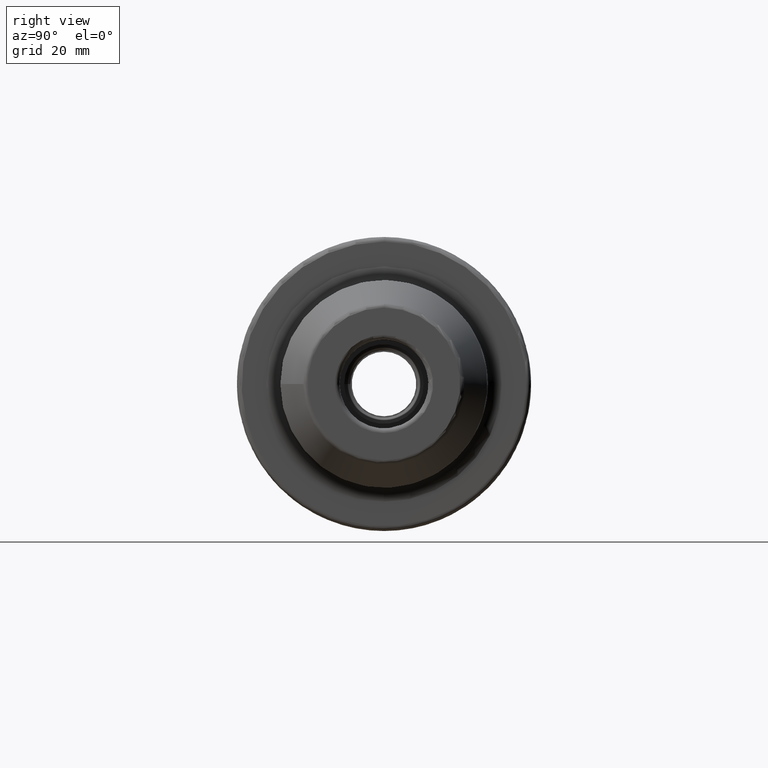
[diagram: clean part render]
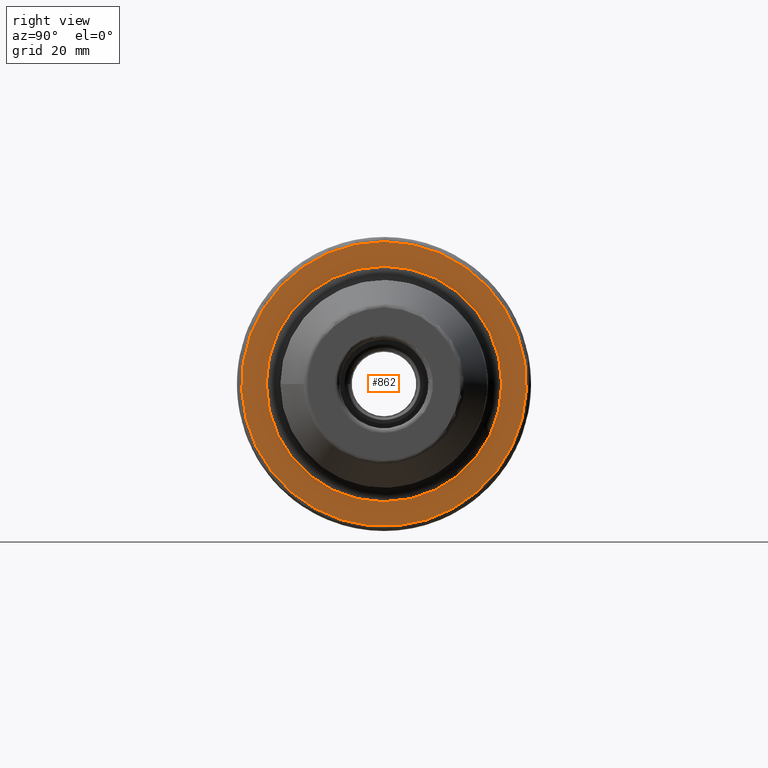
[diagram: same view with one face highlighted and labeled with its STEP entity id]
A machine part, right view. The second image highlights one B-rep face of the part: STEP entity #862.
In plain terms, the highlighted planar face has unit normal (1, 0, 0).
Its self-contained STEP definition (entity closure, byte-faithful):
#157=FACE_BOUND('',#247,.T.);
#165=PLANE('',#956);
#190=FACE_OUTER_BOUND('',#246,.T.);
#246=EDGE_LOOP('',(#623));
#247=EDGE_LOOP('',(#624));
#315=CIRCLE('',#955,25.225);
#316=CIRCLE('',#957,30.5);
#377=VERTEX_POINT('',#1442);
#378=VERTEX_POINT('',#1446);
#471=EDGE_CURVE('',#377,#377,#315,.T.);
#472=EDGE_CURVE('',#378,#378,#316,.T.);
#623=ORIENTED_EDGE('',*,*,#472,.T.);
#624=ORIENTED_EDGE('',*,*,#471,.F.);
#862=ADVANCED_FACE('',(#190,#157),#165,.T.);
#955=AXIS2_PLACEMENT_3D('',#1444,#1100,#1101);
#956=AXIS2_PLACEMENT_3D('',#1445,#1102,#1103);
#957=AXIS2_PLACEMENT_3D('',#1447,#1104,#1105);
#1100=DIRECTION('center_axis',(1.,0.,0.));
#1101=DIRECTION('ref_axis',(0.,-1.,-1.22464679914735E-16));
#1102=DIRECTION('center_axis',(1.,0.,0.));
#1103=DIRECTION('ref_axis',(0.,0.,-1.));
#1104=DIRECTION('center_axis',(1.,0.,0.));
#1105=DIRECTION('ref_axis',(0.,0.,-1.));
#1442=CARTESIAN_POINT('',(27.,-3.0891715508492E-15,-25.225));
#1444=CARTESIAN_POINT('Origin',(27.,0.,0.));
#1445=CARTESIAN_POINT('Origin',(27.,0.,0.));
#1446=CARTESIAN_POINT('',(27.,-3.73517273739943E-15,30.5));
#1447=CARTESIAN_POINT('Origin',(27.,0.,0.));